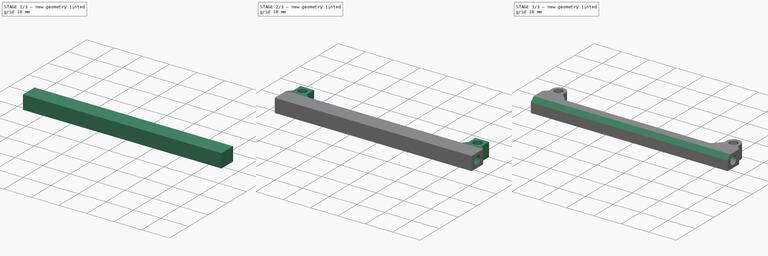
[diagram: build sequence overview — one tinted view per stage of 3, left to right]
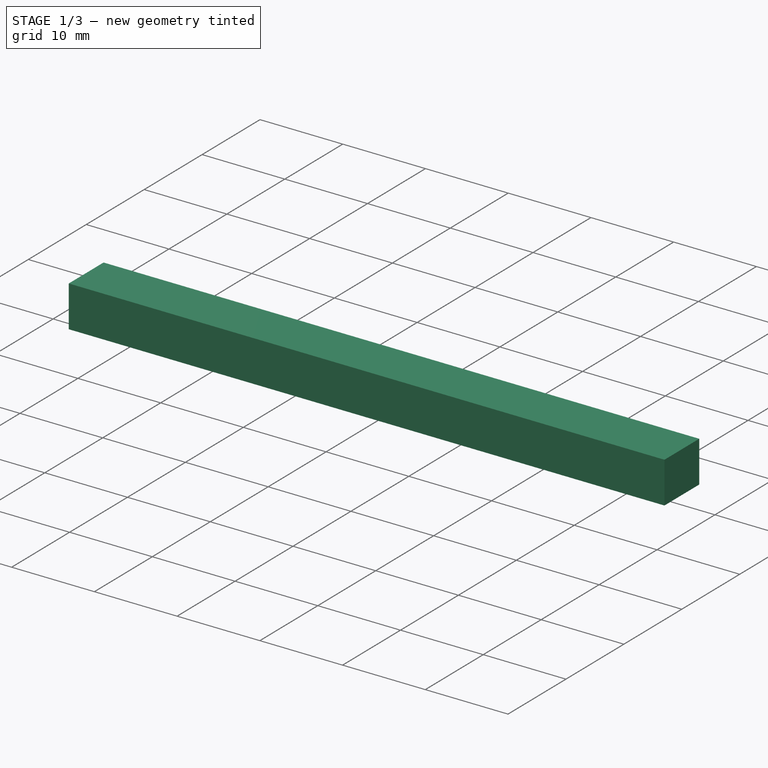
[diagram: stage 1 of 3 — iso view after this stage's code; geometry added in this stage tinted green]
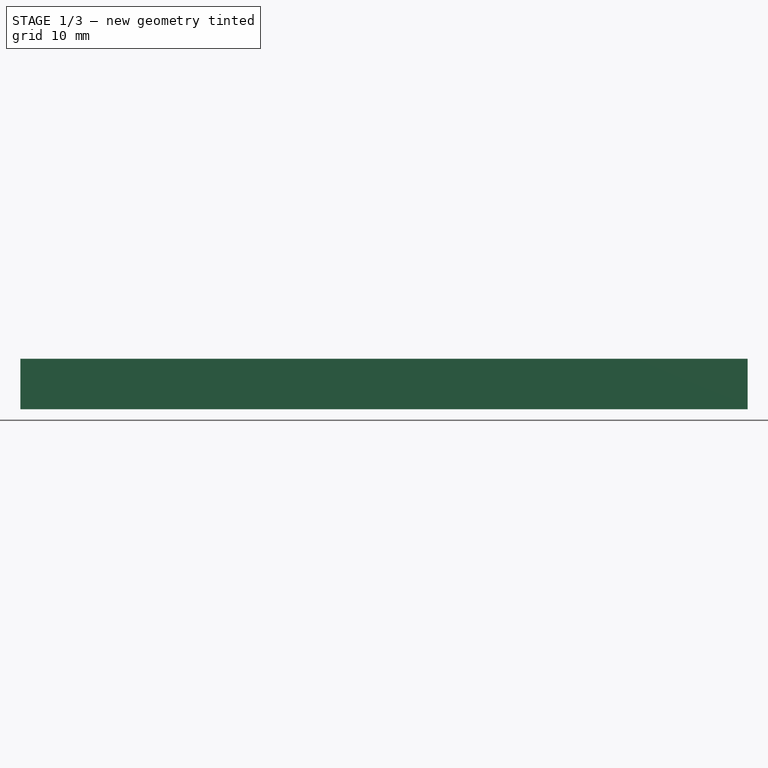
[diagram: stage 1 of 3 — front view after this stage's code; geometry added in this stage tinted green]
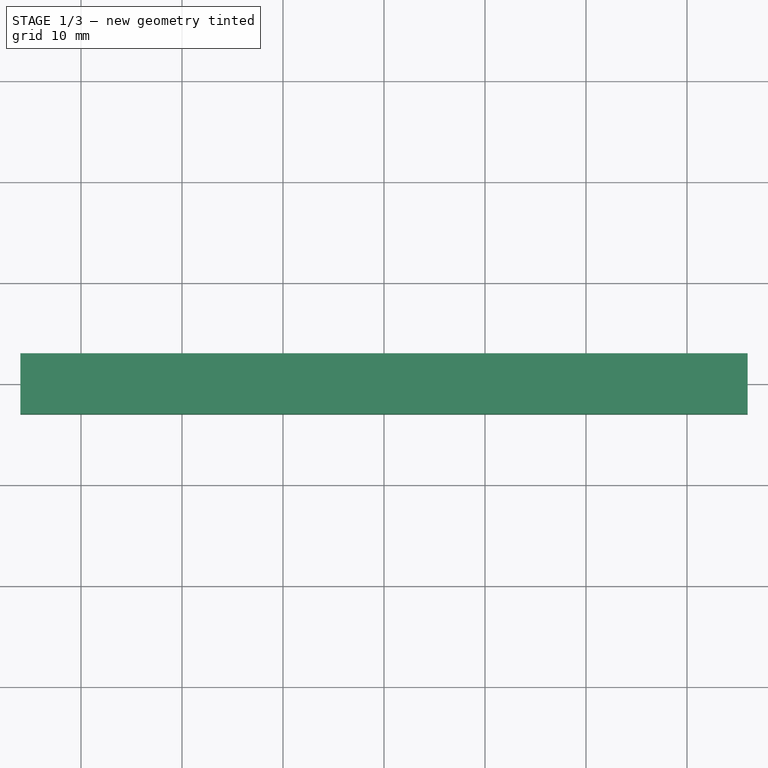
[diagram: stage 1 of 3 — top view after this stage's code; geometry added in this stage tinted green]
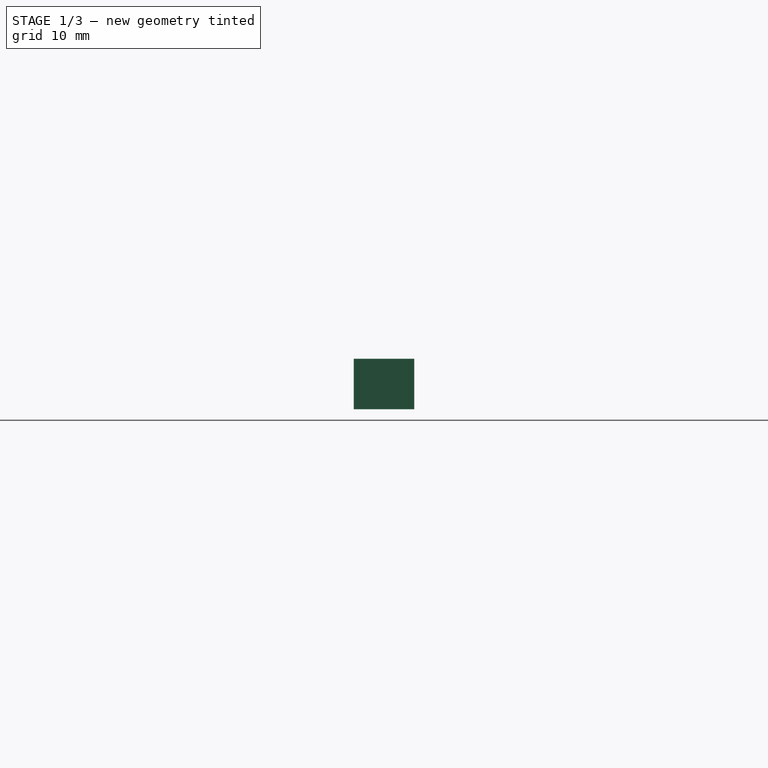
[diagram: stage 1 of 3 — right view after this stage's code; geometry added in this stage tinted green]
FCSTD DOCUMENT  (FreeCAD 0.16R6703 (Git))
Label: Prototype_Connector
License: All rights reserved
LicenseURL: http://en.wikipedia.org/wiki/All_rights_reserved
objects: Sketcher::SketchObject×4, PartDesign::Pad×2, PartDesign::Pocket×2, PartDesign::Chamfer×2, PartDesign::Fillet×1
note: 15 computed .brp shape members not serialized (recipe doc carries the construction recipe); baked Part::Feature solids carry a one-line shape summary decoded from their .brp

FEATURE [Sketcher::SketchObject] Sketch
  sketch-geometry (4):
    g0: LineSegment StartX=-36 StartY=-3 StartZ=0 EndX=36 EndY=-3 EndZ=0
    g1: LineSegment StartX=36 StartY=-3 StartZ=0 EndX=36 EndY=3 EndZ=0
    g2: LineSegment StartX=36 StartY=3 StartZ=0 EndX=-36 EndY=3 EndZ=0
    g3: LineSegment StartX=-36 StartY=3 StartZ=0 EndX=-36 EndY=-3 EndZ=0
  constraints (11):
    c: Coincident(g0,g1)
    c: Coincident(g1,g2)
    c: Coincident(g2,g3)
    c: Coincident(g3,g0)
    c: Horizontal(g0)
    c: Horizontal(g2)
    c: Vertical(g1)
    c: Vertical(g3)
    c: Symmetric(g0,g1,g-1)
    c: Distance(g3) = 6
    c: Distance(g2) = 72
FEATURE [PartDesign::Pad] Pad
  Length = 5
  Length2 = 100
  Midplane = true
  Sketch = -> Sketch
  Type = 0
FEATURE [Sketcher::SketchObject] Sketch001
  Placement = pos=(-36,0,0) rot=(0.57735,-0.57735,-0.57735;2.0944rad)
  Support = -> Pad [Face4]
  sketch-geometry (1):
    g0: Circle CenterX=0 CenterY=0 CenterZ=0 NormalX=0 NormalY=0 NormalZ=1 Radius=1.5
  constraints (2):
    c: Coincident(g0,g-1)
    c: Radius(g0) = 1.5
FEATURE [PartDesign::Pocket] Pocket
  Length = 11
  Sketch = -> Sketch001
  Type = 0
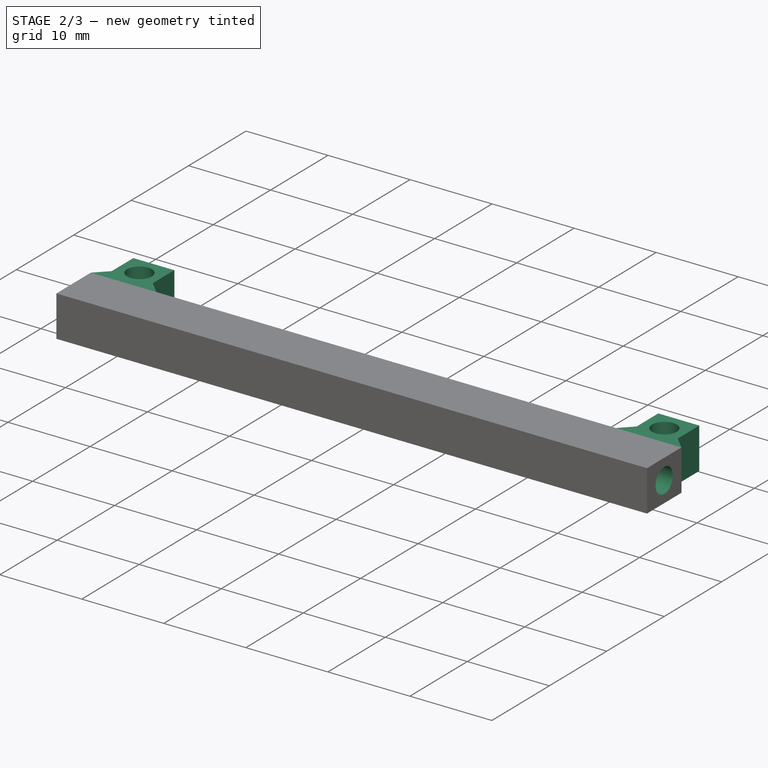
[diagram: stage 2 of 3 — iso view after this stage's code; geometry added in this stage tinted green]
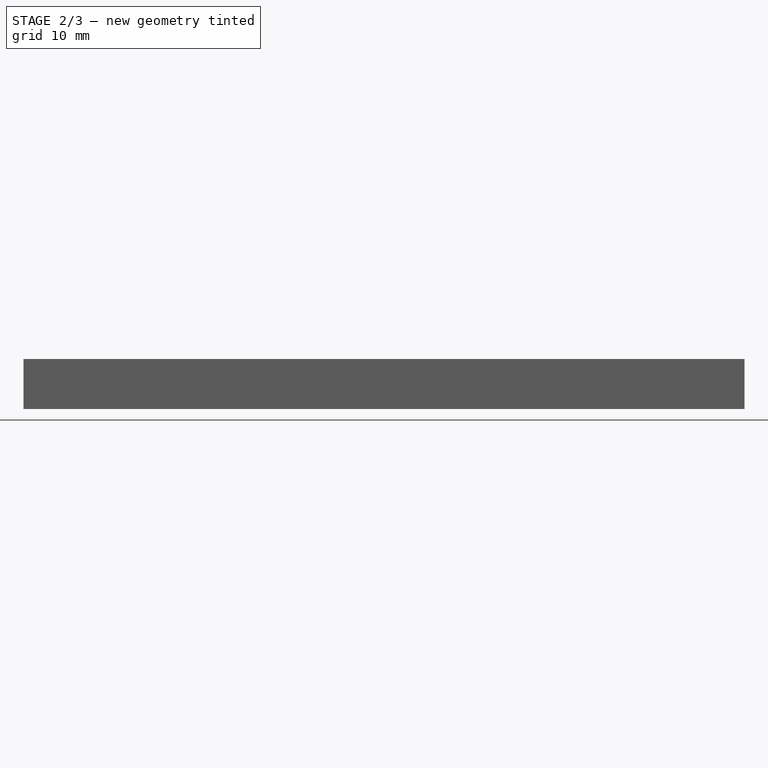
[diagram: stage 2 of 3 — front view after this stage's code; geometry added in this stage tinted green]
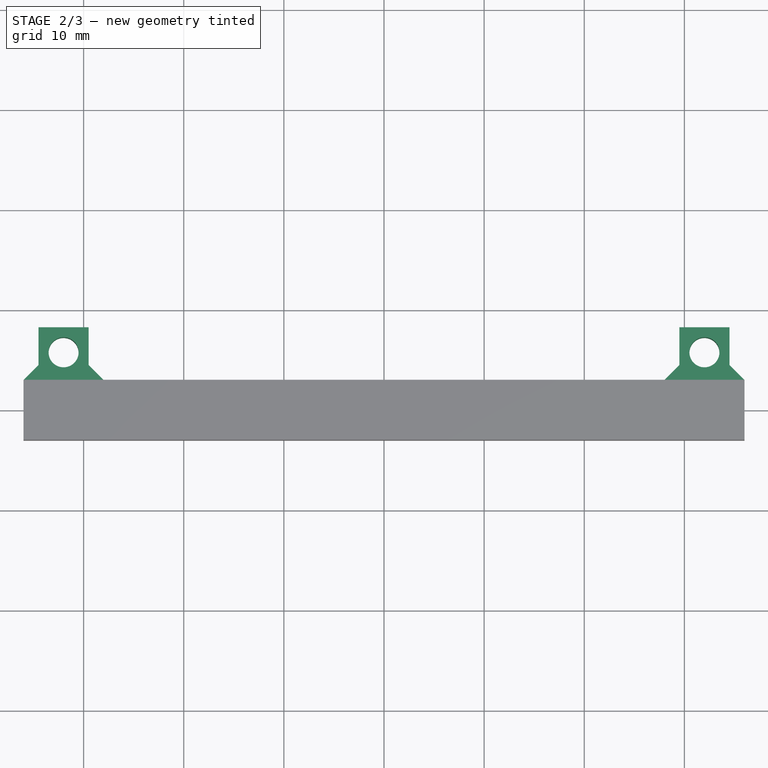
[diagram: stage 2 of 3 — top view after this stage's code; geometry added in this stage tinted green]
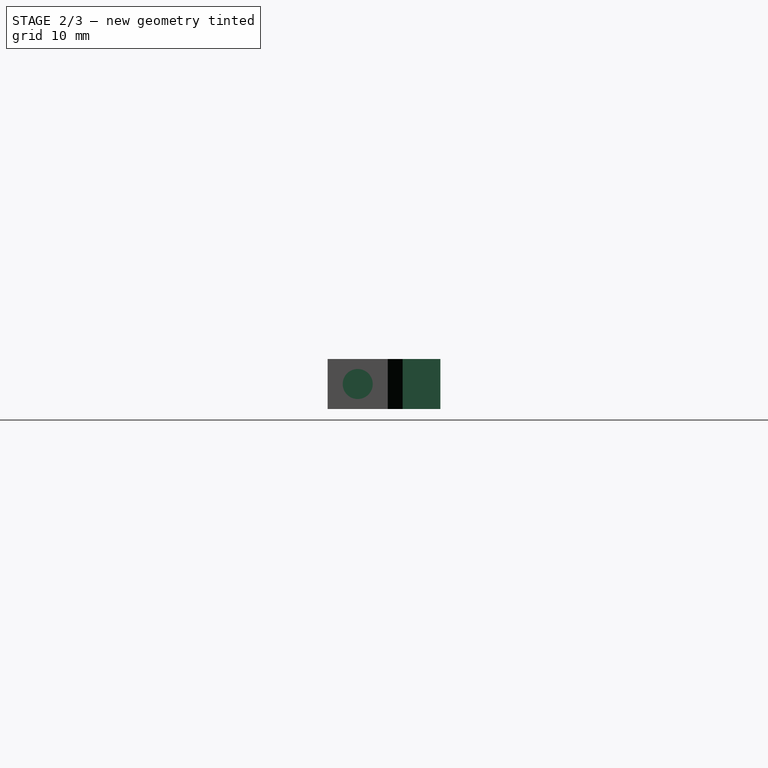
[diagram: stage 2 of 3 — right view after this stage's code; geometry added in this stage tinted green]
FEATURE [Sketcher::SketchObject] Sketch002
  Placement = pos=(36,0,0) rot=(0.57735,0.57735,0.57735;2.0944rad)
  Support = -> Pocket [Face3]
  sketch-geometry (1):
    g0: Circle CenterX=0 CenterY=0 CenterZ=0 NormalX=0 NormalY=0 NormalZ=1 Radius=1.5
  constraints (2):
    c: Coincident(g0,g-1)
    c: Radius(g0) = 1.5
FEATURE [PartDesign::Pocket] Pocket001
  Length = 11
  Sketch = -> Sketch002
  Type = 0
FEATURE [Sketcher::SketchObject] Sketch003
  Placement = pos=(0,0,-2.5) rot=(1,0,0;3.14159rad)
  Support = -> Pocket001 [Face4]
  expr: Constraints[13] = 20 - 22.5 / 2 - 3
  sketch-geometry (10):
    g0: LineSegment StartX=29.5 StartY=-2.4 StartZ=0 EndX=34.5 EndY=-2.4 EndZ=0
    g1: LineSegment StartX=34.5 StartY=-2.4 StartZ=0 EndX=34.5 EndY=-8.25 EndZ=0
    g2: LineSegment StartX=34.5 StartY=-8.25 StartZ=0 EndX=29.5 EndY=-8.25 EndZ=0
    g3: LineSegment StartX=29.5 StartY=-8.25 StartZ=0 EndX=29.5 EndY=-2.4 EndZ=0
    g4: Circle CenterX=32 CenterY=-5.75 CenterZ=0 NormalX=0 NormalY=0 NormalZ=1 Radius=1.5
    g5: LineSegment StartX=-34.5 StartY=-2.4 StartZ=0 EndX=-29.5 EndY=-2.4 EndZ=0
    g6: LineSegment StartX=-29.5 StartY=-2.4 StartZ=0 EndX=-29.5 EndY=-8.25 EndZ=0
    g7: LineSegment StartX=-29.5 StartY=-8.25 StartZ=0 EndX=-34.5 EndY=-8.25 EndZ=0
    g8: LineSegment StartX=-34.5 StartY=-8.25 StartZ=0 EndX=-34.5 EndY=-2.4 EndZ=0
    g9: Circle CenterX=-32 CenterY=-5.75 CenterZ=0 NormalX=0 NormalY=0 NormalZ=1 Radius=1.5
  constraints (27):
    c: Coincident(g0,g1)
    c: Coincident(g1,g2)
    c: Coincident(g2,g3)
    c: Coincident(g3,g0)
    c: Horizontal(g0)
    c: Horizontal(g2)
    c: Vertical(g1)
    c: Vertical(g3)
    c: Distance(g0) = 5
    c: Radius(g4) = 1.5
    c: DistanceX(g2,g4) = 2.5
    c: DistanceY(g2,g4) = 2.5
    c: DistanceX(g-1,g4) = 32
    c: DistanceY(g4,g-1) = 5.75
    c: DistanceY(g0,g-1) = 2.4
    c: Coincident(g5,g6)
    c: Coincident(g6,g7)
    c: Coincident(g7,g8)
    c: Coincident(g8,g5)
    c: Horizontal(g5)
    c: Horizontal(g7)
    c: Vertical(g6)
    c: Vertical(g8)
    c: Symmetric(g1,g7,g-2)
    c: Symmetric(g5,g0,g-2)
    c: Equal(g9,g4)
    c: Symmetric(g9,g4,g-2)
FEATURE [PartDesign::Pad] Pad001
  Length = 5
  Length2 = 100
  Reversed = true
  Sketch = -> Sketch003
  Type = 0
FEATURE [PartDesign::Chamfer] Chamfer
  Base = -> Pad001 [Edge34,Edge39,Edge38,Edge31]
  Size = 1.49
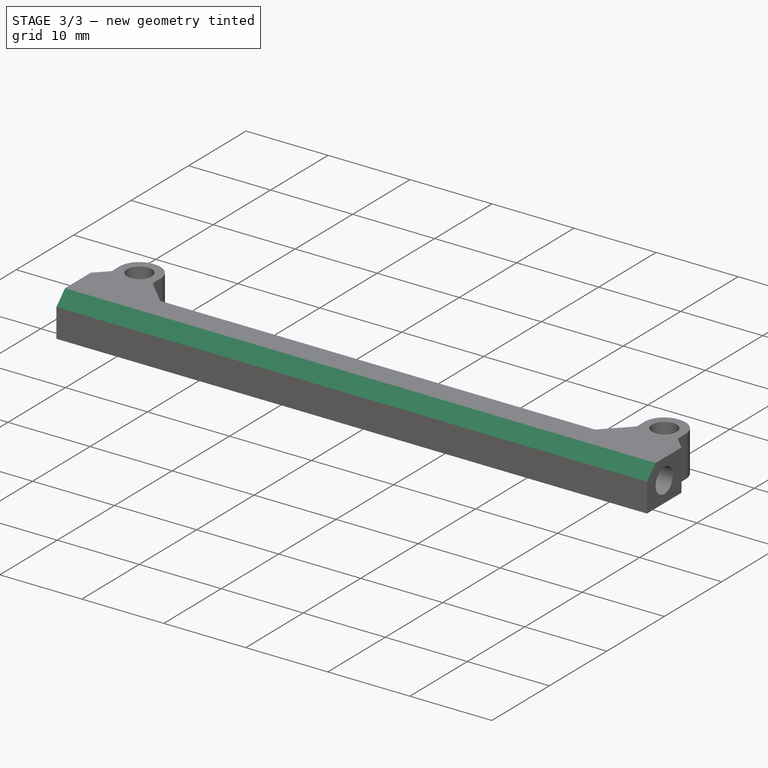
[diagram: stage 3 of 3 — iso view after this stage's code; geometry added in this stage tinted green]
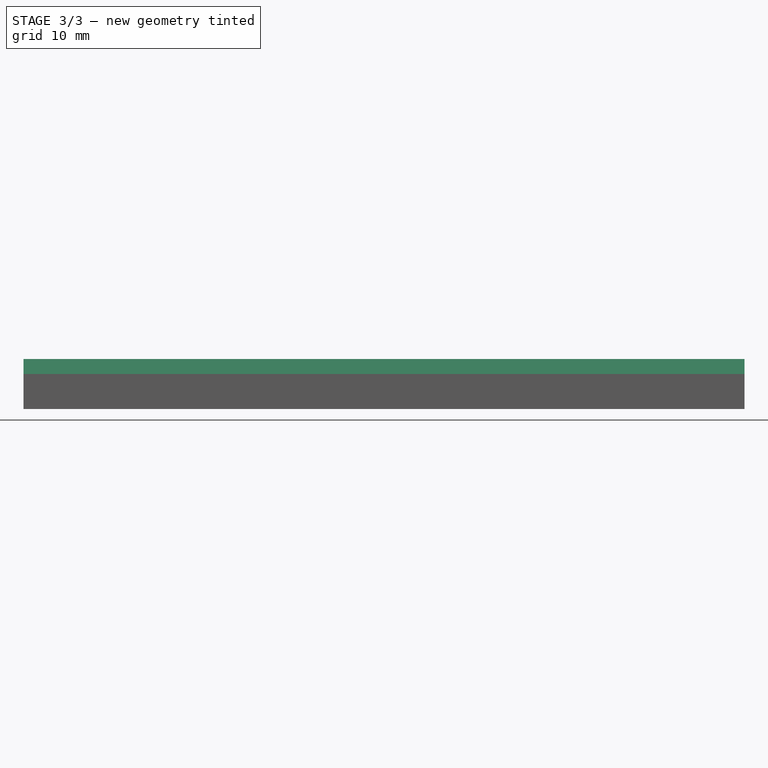
[diagram: stage 3 of 3 — front view after this stage's code; geometry added in this stage tinted green]
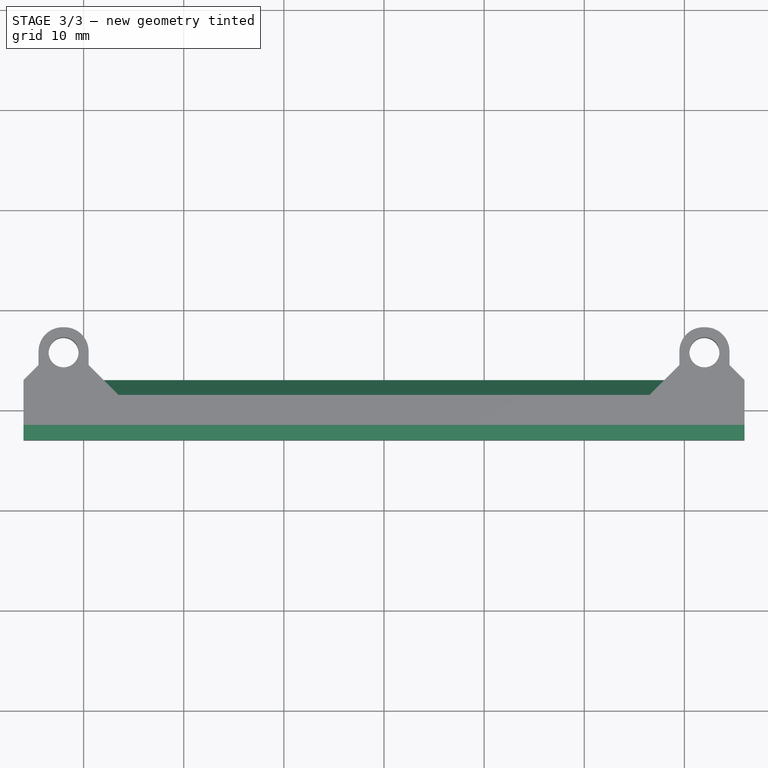
[diagram: stage 3 of 3 — top view after this stage's code; geometry added in this stage tinted green]
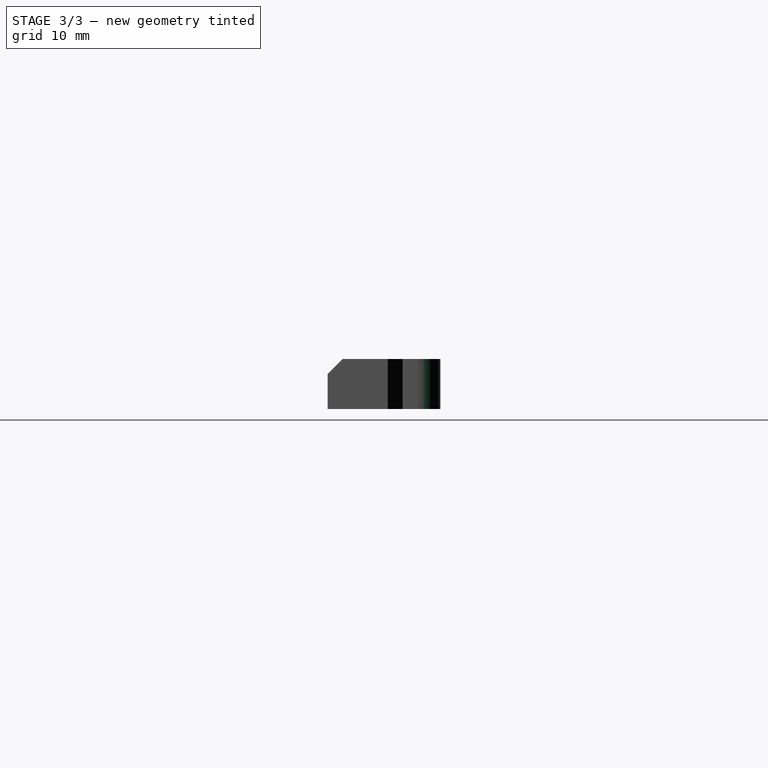
[diagram: stage 3 of 3 — right view after this stage's code; geometry added in this stage tinted green]
FEATURE [PartDesign::Fillet] Fillet
  Base = -> Chamfer [Edge59,Edge61,Edge75,Edge78]
  Radius = 2.4
FEATURE [PartDesign::Chamfer] Chamfer001
  Base = -> Fillet [Edge52,Edge68]
  Size = 1.5
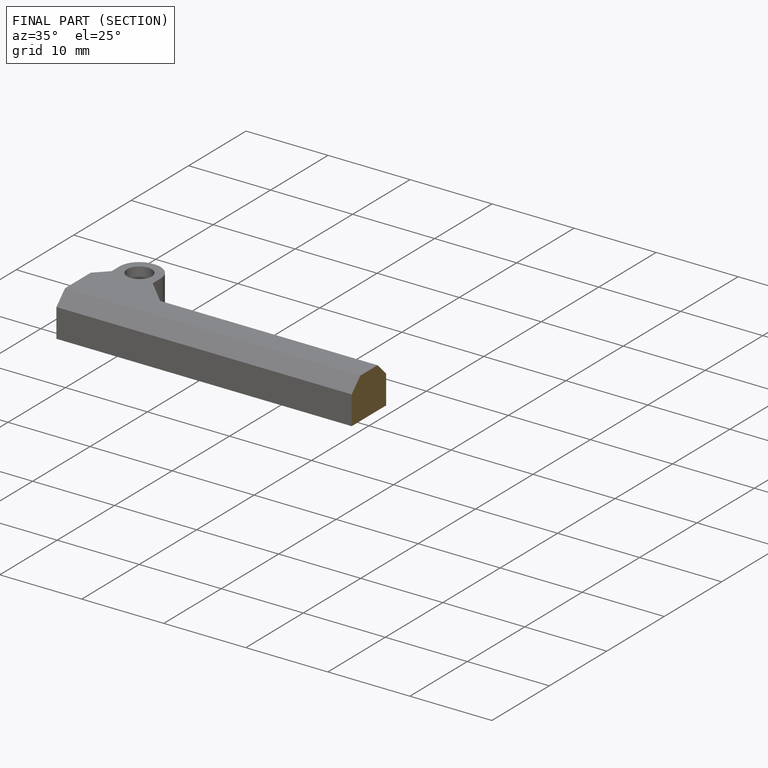
[diagram: finished part — half-section view (interior)]
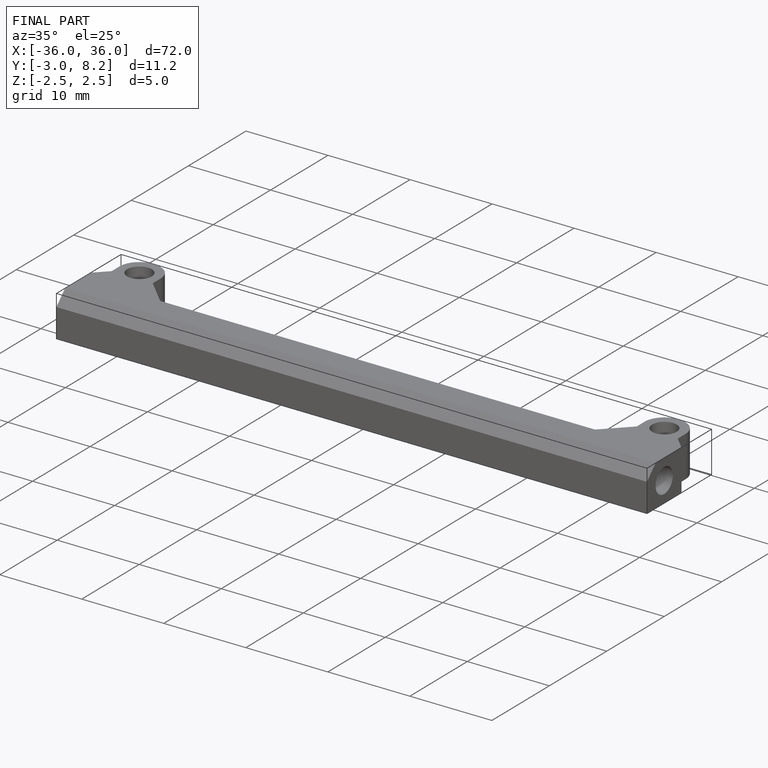
[diagram: finished part — iso view with bounding-box wireframe]
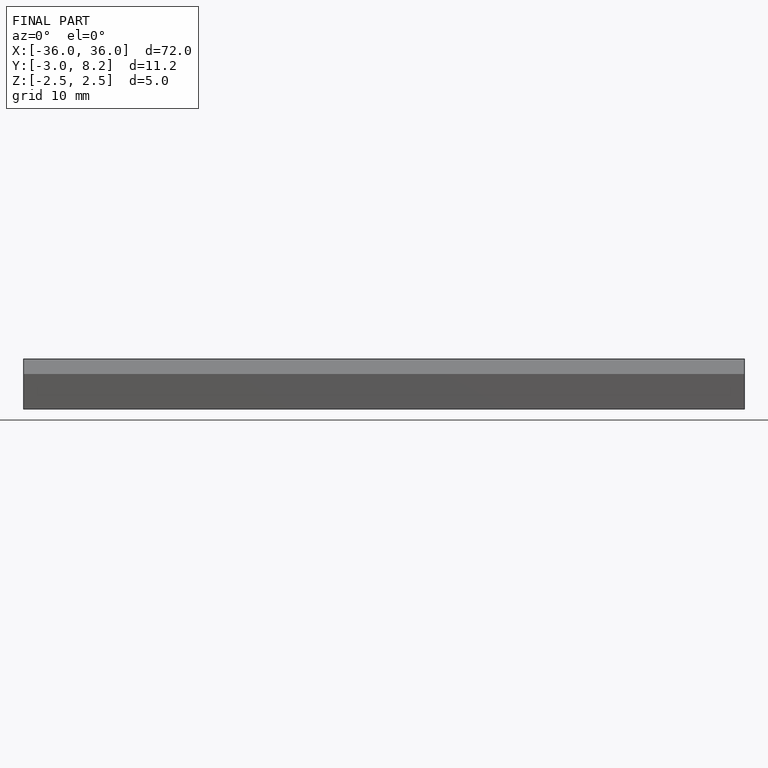
[diagram: finished part — front view with bounding-box wireframe]
